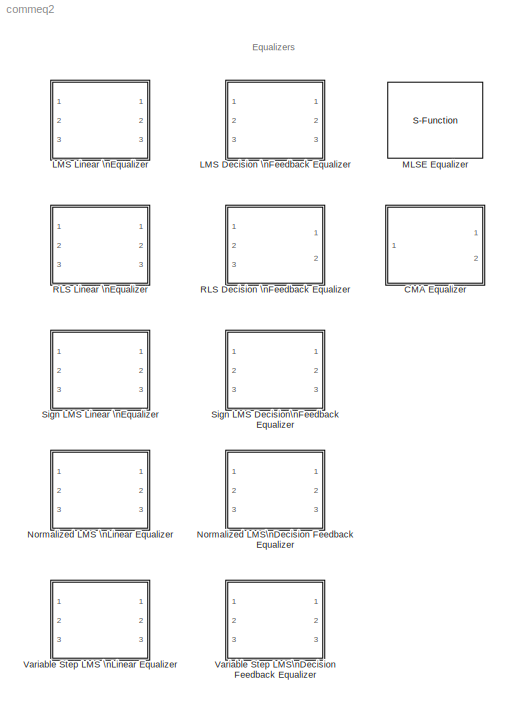
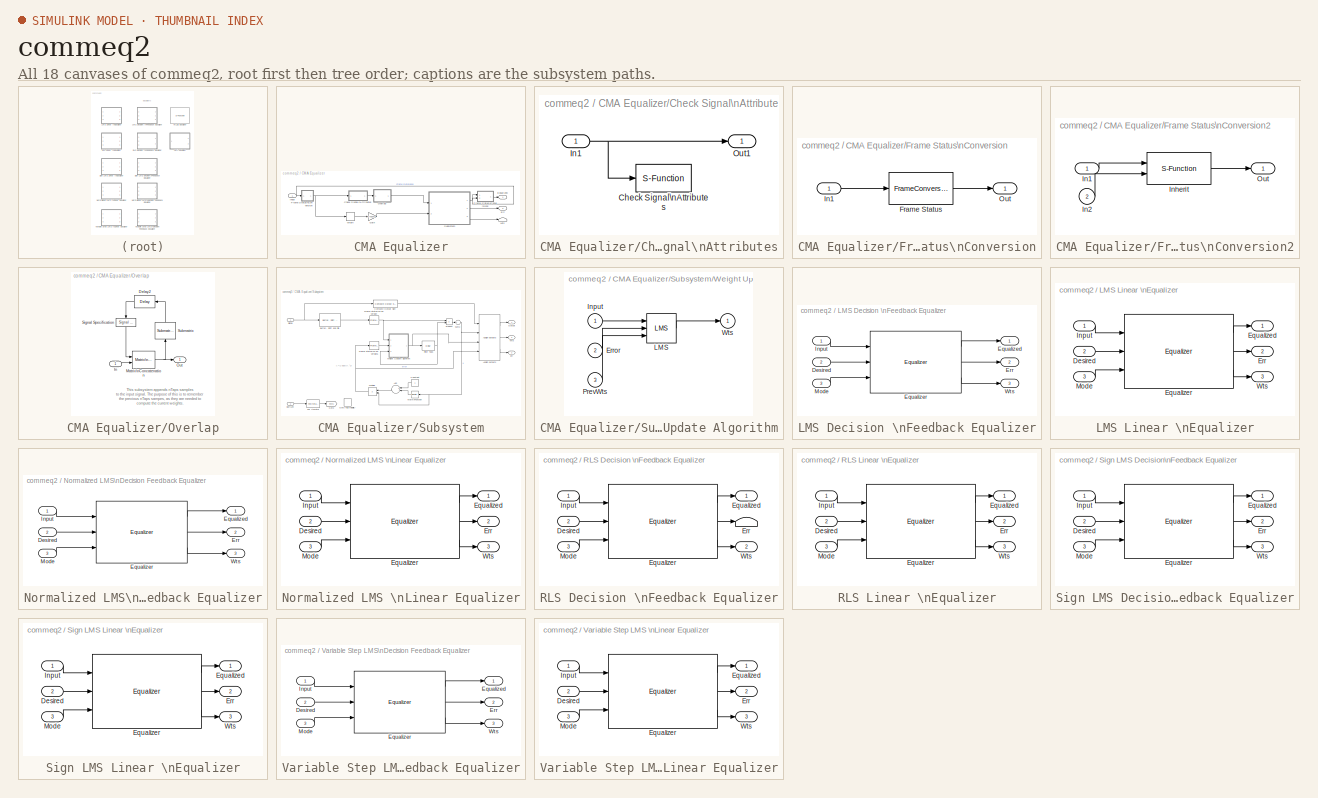
[diagram: thumbnail index - all 18 canvases of the model, root first then tree order]
MODEL commeq2
KIND library
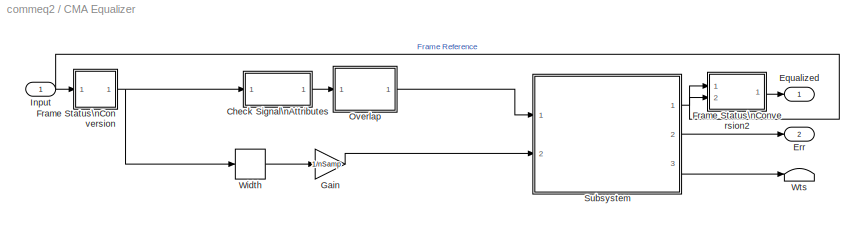
BLOCK [SubSystem] CMA Equalizer
  MaskCallbackString = |||||||
  MaskDescription = Equalize a linearly modulated signal through a dispersive channel using the CMA algorithm.\n\nThe block computes filter weights with the CMA algorithm and filters the input signal. When the number of samples per symbol is 1, the filter weights are updated once for each symbol, for a symbol spaced (i.e. T-spaced) equalizer. When the number of samples per symbol is greater than one, the weights are ...<+267ch>
  MaskDisplay = \n\n
  MaskEnableString = on,on,on,on,on,on,on,on
  MaskHelp = helpview(commbhelp)
  MaskIconFrame = on
  MaskIconOpaque = on
  MaskIconRotate = none
  MaskIconUnits = autoscale
  MaskInitialization = try\ncommblklineqmasklms\ncatch\n	error(lasterr)\nend\ncommblkequpdateports\n
  MaskPromptString = Number of taps:|Number of samples per symbol:|Signal constellation:|Step size:|Leakage factor:|Initial weights:|Output error|Output weights
  MaskSelfModifiable = on
  MaskStyleString = edit,edit,edit,edit,edit,edit,checkbox,checkbox
  MaskTabNameString = ,,,,,,,
  MaskToolTipString = on,on,on,on,on,on,on,on
  MaskTunableValueString = on,on,on,on,on,on,off,off
  MaskType = CMA Equalizer
  MaskValueString = 4|1|qammod([0:15],16)|0.01|1|[1 0 0 0]|on|off
  MaskVarAliasString = ,,,,,,,
  MaskVariables = nTaps=@1;nSamp=@2;sigConst=@3;stepSize=@4;leakage=@5;initWeights=@6;outErr=@7;outWeights=@8;
  MaskVisibilityString = on,on,on,on,on,on,on,on
  MinAlgLoopOccurrences = off
  Ports = [1, 2]
  PropExecContextAcrossSSBoundary = on
  RTWSystemCode = Auto
  TreatAsAtomicUnit = off
BLOCK [SubSystem] CMA Equalizer/Check Signal\nAttributes
  MaskCallbackString = |||dspblkchksigattrbs||dspblkchksigattrbs|dspblkchksigattrbs|||dspblkchksigattrbs|
  MaskDescription = Generate an error when the input signal does or does not match selected attributes exactly.
  MaskDisplay = disp('Check Signal\\n Attributes');
  MaskEnableString = on,on,on,on,on,on,on,on,on,on,on
  MaskHelp = web(dspbhelp);
  MaskIconFrame = on
  MaskIconOpaque = on
  MaskIconRotate = none
  MaskIconUnits = autoscale
  MaskPromptString = Error when input:|Complexity:|Frame status:|Dimensionality:|Dimensions:|Data type:|General data type:|Specific floating-point:|Specific fixed-point:|Specific integer:|Sample mode:
  MaskSelfModifiable = on
  MaskStyleString = popup(Does not match attributes exactly|Matches attributes exactly),popup(Ignore|Real|Complex),popup(Ignore|Frame-based|Sample-based),popup(Ignore|Is...|Is not...),popup(1-D|2-D|Scalar (1-D or 2-D)|Vector (1-D or 2-D)|Vector (1-D or 2-D) or scalar|Row vector (2-D)|Row vector (2-D) or scalar|Column vector (2-D)|Column vector (2-D) or scalar|Full matrix (2-D)|Square matrix (2-D)),popup(Ignore|Is...|...<+305ch>
  MaskTabNameString = ,,,,,,,,,,
  MaskToolTipString = on,on,on,on,on,on,on,on,on,on,on
  MaskTunableValueString = off,off,off,off,off,off,off,off,off,off,off
  MaskType = Check Signal Attributes
  MaskValueString = Does not match attributes exactly|Complex|Ignore|Is not...|Full matrix (2-D)|Ignore|Boolean|Any floating-point|Any fixed-point|Any integer|Ignore
  MaskVarAliasString = ,,,,,,,,,,
  MaskVariables = SigAttribCheckMethod=@1;Complexity=@2;Frame=@3;DimsCheckMethod=@4;Dimensions=@5;DatatypeCheckMethod=@6;DatatypeGeneral=@7;DtypeFloatSpecific=@8;DtypeFixedSpecific=@9;DtypeIntSpecific=@10;SampleMode=@11;
  MaskVisibilityString = on,on,on,on,off,on,off,off,off,off,on
  MinAlgLoopOccurrences = off
  Ports = [1, 1]
  PropExecContextAcrossSSBoundary = on
  RTWSystemCode = Auto
  TreatAsAtomicUnit = off
BLOCK [S-Function] CMA Equalizer/Check Signal\nAttributes/Check Signal\nAttributes
  FunctionName = sdspsigattrib
  Parameters = SigAttribCheckMethod,Complexity,Frame,DimsCheckMethod,Dimensions,DatatypeCheckMethod,DatatypeGeneral,DtypeFloatSpecific,DtypeFixedSpecific,DtypeIntSpecific,SampleMode
  Ports = [1]
BLOCK [Inport] CMA Equalizer/Check Signal\nAttributes/In1
  IconDisplay = Port number
  LatchInput = off
BLOCK [Outport] CMA Equalizer/Check Signal\nAttributes/Out1
  BusOutputAsStruct = off
  IconDisplay = Port number
BLOCK [Outport] CMA Equalizer/Equalized
  BusOutputAsStruct = off
  IconDisplay = Port number
BLOCK [Outport] CMA Equalizer/Err
  BusOutputAsStruct = off
  IconDisplay = Port number
  Port = 2
BLOCK [SubSystem] CMA Equalizer/Frame Status\nConversion
  MaskCallbackString = dspblkfrmconv|
  MaskDescription = Specify the frame status of the output signal.
  MaskDisplay = port_label(p.in1,   p.i1,  p.i1s);\nport_label(p.in2,   p.i2,  p.i2s);\nport_label(p.out, p.o1, p.o1s);\ndisp(str)
  MaskEnableString = on,on
  MaskHelp = web(dspbhelp);
  MaskIconFrame = on
  MaskIconOpaque = on
  MaskIconRotate = none
  MaskIconUnits = autoscale
  MaskInitialization = [p, str] = dspblkfrmconv('init');
  MaskPromptString = Inherit output frame status from Ref input port|Output signal:
  MaskSelfModifiable = on
  MaskStyleString = checkbox,popup(Frame-based|Sample-based)
  MaskTabNameString = ,
  MaskToolTipString = on,on
  MaskTunableValueString = off,off
  MaskType = Frame Status Conversion
  MaskValueString = off|Frame-based
  MaskVarAliasString = ,
  MaskVariables = growRefPort=@1;outframe=@2;
  MaskVisibilityString = on,on
  MinAlgLoopOccurrences = off
  Ports = [1, 1]
  PropExecContextAcrossSSBoundary = on
  RTWSystemCode = Auto
  ShowPortLabels = off
  TreatAsAtomicUnit = off
BLOCK [FrameConversion] CMA Equalizer/Frame Status\nConversion/Frame Status
  OutFrame = Frame based
BLOCK [Inport] CMA Equalizer/Frame Status\nConversion/In1
  IconDisplay = Port number
  LatchInput = off
BLOCK [Outport] CMA Equalizer/Frame Status\nConversion/Out
  BusOutputAsStruct = off
  IconDisplay = Port number
BLOCK [SubSystem] CMA Equalizer/Frame Status\nConversion2
  MaskCallbackString = dspblkfrmconv|
  MaskDescription = Specify the frame status of the output signal.
  MaskDisplay = port_label(p.in1,   p.i1,  p.i1s);\nport_label(p.in2,   p.i2,  p.i2s);\nport_label(p.out, p.o1, p.o1s);\ndisp(str)
  MaskEnableString = on,on
  MaskHelp = web(dspbhelp);
  MaskIconFrame = on
  MaskIconOpaque = on
  MaskIconRotate = none
  MaskIconUnits = autoscale
  MaskInitialization = [p, str] = dspblkfrmconv('init');
  MaskPromptString = Inherit output frame status from Ref input port|Output signal:
  MaskSelfModifiable = on
  MaskStyleString = checkbox,popup(Frame-based|Sample-based)
  MaskTabNameString = ,
  MaskToolTipString = on,on
  MaskTunableValueString = off,off
  MaskType = Frame Status Conversion
  MaskValueString = on|Frame-based
  MaskVarAliasString = ,
  MaskVariables = growRefPort=@1;outframe=@2;
  MaskVisibilityString = on,on
  MinAlgLoopOccurrences = off
  Ports = [2, 1]
  PropExecContextAcrossSSBoundary = on
  RTWSystemCode = Auto
  ShowPortLabels = off
  TreatAsAtomicUnit = off
BLOCK [Inport] CMA Equalizer/Frame Status\nConversion2/In1
  IconDisplay = Port number
  LatchInput = off
BLOCK [Inport] CMA Equalizer/Frame Status\nConversion2/In2
  IconDisplay = Port number
  LatchInput = off
  Port = 2
BLOCK [S-Function] CMA Equalizer/Frame Status\nConversion2/Inherit
  FunctionName = sdspfrmconv
  Parameters = growRefPort,outframe
  Ports = [2, 1]
BLOCK [Outport] CMA Equalizer/Frame Status\nConversion2/Out
  BusOutputAsStruct = off
  IconDisplay = Port number
BLOCK [Gain] CMA Equalizer/Gain
  Gain = 1/nSamp
BLOCK [Inport] CMA Equalizer/Input
  IconDisplay = Port number
  LatchInput = off
BLOCK [SubSystem] CMA Equalizer/Overlap
  MinAlgLoopOccurrences = off
  Ports = [1, 1]
  PropExecContextAcrossSSBoundary = on
  RTWSystemCode = Auto
  TreatAsAtomicUnit = off
BLOCK [Reference] CMA Equalizer/Overlap/Delay2  REF=dspsigops/Delay
  Ports = [1, 1]
  SourceBlock = dspsigops/Delay
  SourceType = Delay
  delay = nFwdTaps
  dif_ic_for_ch = off
  dif_ic_for_dly = off
  dly_unit = Samples
  ic = 0
  ic_detail = off
  reset_popup = None
BLOCK [Inport] CMA Equalizer/Overlap/In
  IconDisplay = Port number
  LatchInput = off
BLOCK [Reference] CMA Equalizer/Overlap/Matrix\nConcatenation  REF=simulink/Math\nOperations/Matrix\nConcatenation
  Ports = [2, 1]
  SourceBlock = simulink/Math\nOperations/Matrix\nConcatenation
  SourceType = Matrix Concatenation
  catMethod = Vertical
  numInports = 2
BLOCK [Outport] CMA Equalizer/Overlap/Out
  BusOutputAsStruct = off
  IconDisplay = Port number
BLOCK [Reference] CMA Equalizer/Overlap/Signal Specification  REF=simulink/Signal\nAttributes/Signal Specification
  D = [nFwdTaps 1]
  DataType = auto
  OutDataType = sfix(16)
  OutScaling = 2^0
  Ports = [1, 1]
  SamplingMode = auto
  SignalType = auto
  SourceBlock = simulink/Signal\nAttributes/Signal Specification
  SourceType = Signal Specification
  Ts = -1
BLOCK [Reference] CMA Equalizer/Overlap/Submatrix  REF=dspmtrx3/Submatrix
  ColEndIndex = 1
  ColEndMode = Last
  ColSpan = Range of columns
  ColStartIndex = 1
  ColStartMode = First
  Ports = [1, 1]
  RowEndIndex = 1
  RowEndMode = Last
  RowSpan = Range of rows
  RowStartIndex = nFwdTaps-1
  RowStartMode = Offset from last
  SourceBlock = dspmtrx3/Submatrix
  SourceType = Submatrix
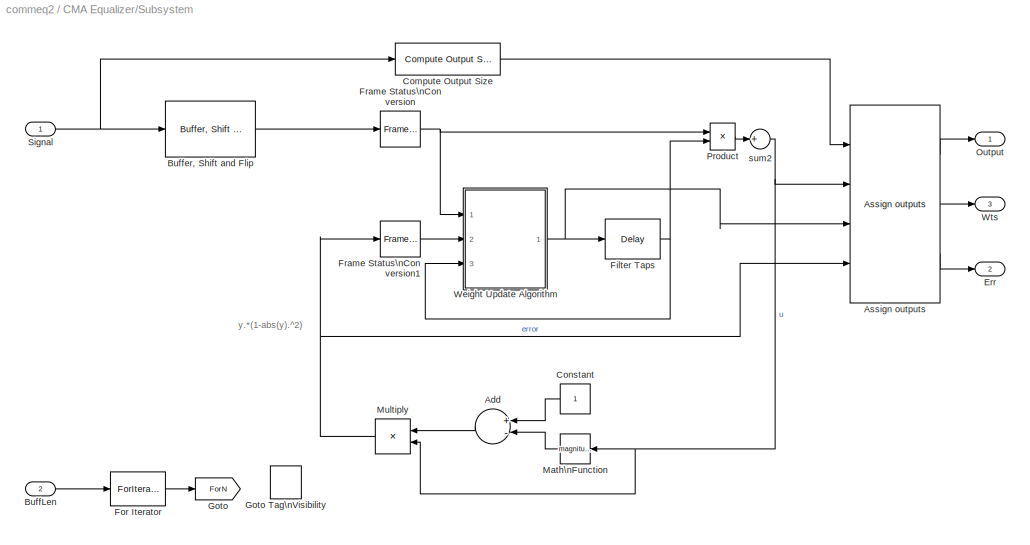
BLOCK [SubSystem] CMA Equalizer/Subsystem
  MinAlgLoopOccurrences = off
  Ports = [2, 3]
  PropExecContextAcrossSSBoundary = on
  RTWSystemCode = Auto
  TreatAsAtomicUnit = off
BLOCK [Sum] CMA Equalizer/Subsystem/Add
  InputSameDT = off
  Inputs = +-
  OutDataTypeMode = Inherit via internal rule
  OutScaling = 2^-10
  Ports = [2, 1]
  SaturateOnIntegerOverflow = off
BLOCK [Reference] CMA Equalizer/Subsystem/Assign outputs  REF=commeqprivlib/Assign outputs
  Ports = [4, 3]
  ShowPortLabels = on
  SourceBlock = commeqprivlib/Assign outputs
  SourceType = SubSystem
BLOCK [Inport] CMA Equalizer/Subsystem/BuffLen
  IconDisplay = Port number
  LatchInput = off
  Port = 2
BLOCK [Reference] CMA Equalizer/Subsystem/Buffer, Shift and Flip  REF=commeqprivlib/Buffer, Shift and Flip
  Ports = [1, 1]
  ShowPortLabels = on
  SourceBlock = commeqprivlib/Buffer, Shift and Flip
  SourceType = SubSystem
BLOCK [Reference] CMA Equalizer/Subsystem/Compute Output Size  REF=commeqprivlib/Compute Output Size
  Ports = [1, 1]
  ShowPortLabels = on
  SourceBlock = commeqprivlib/Compute Output Size
  SourceType = SubSystem
BLOCK [Constant] CMA Equalizer/Subsystem/Constant
BLOCK [Outport] CMA Equalizer/Subsystem/Err
  BusOutputAsStruct = off
  IconDisplay = Port number
  Port = 2
BLOCK [Reference] CMA Equalizer/Subsystem/Filter Taps  REF=dspsigops/Delay
  Ports = [1, 1]
  SourceBlock = dspsigops/Delay
  SourceType = Delay
  delay = 1
  dif_ic_for_ch = on
  dif_ic_for_dly = off
  dly_unit = Samples
  ic = initWeights
  ic_detail = on
  reset_popup = None
BLOCK [ForIterator] CMA Equalizer/Subsystem/For Iterator
  IndexMode = Zero-based
  IterationLimit = 4
  IterationSource = external
  IterationVariableDataType = double
  Ports = [1, 1]
BLOCK [Reference] CMA Equalizer/Subsystem/Frame Status\nConversion  REF=dspsigattribs/Frame Status\nConversion
  Ports = [1, 1]
  ShowPortLabels = off
  SourceBlock = dspsigattribs/Frame Status\nConversion
  SourceType = Frame Status Conversion
  growRefPort = off
  outframe = Sample-based
BLOCK [Reference] CMA Equalizer/Subsystem/Frame Status\nConversion1  REF=dspsigattribs/Frame Status\nConversion
  Ports = [1, 1]
  ShowPortLabels = off
  SourceBlock = dspsigattribs/Frame Status\nConversion
  SourceType = Frame Status Conversion
  growRefPort = off
  outframe = Sample-based
BLOCK [Goto] CMA Equalizer/Subsystem/Goto
  DialogController = Simulink.DDGSource
  GotoTag = ForN
  TagVisibility = scoped
BLOCK [GotoTagVisibility] CMA Equalizer/Subsystem/Goto Tag\nVisibility
  GotoTag = ForN
BLOCK [Math] CMA Equalizer/Subsystem/Math\nFunction
  Operator = magnitude^2
  Ports = [1, 1]
BLOCK [Product] CMA Equalizer/Subsystem/Multiply
  InputSameDT = off
  Inputs = **
  OutDataTypeMode = Inherit via internal rule
  OutScaling = 2^-10
  Ports = [2, 1]
  RndMeth = Floor
  SaturateOnIntegerOverflow = off
BLOCK [Outport] CMA Equalizer/Subsystem/Output
  BusOutputAsStruct = off
  IconDisplay = Port number
BLOCK [Product] CMA Equalizer/Subsystem/Product
  InputSameDT = off
  OutDataTypeMode = Inherit via internal rule
  Ports = [2, 1]
  RndMeth = Floor
BLOCK [Inport] CMA Equalizer/Subsystem/Signal
  IconDisplay = Port number
  LatchInput = off
BLOCK [SubSystem] CMA Equalizer/Subsystem/Weight Update Algorithm
  AttributesFormatString = %<BlockChoice>
  BlockChoice = LMS
  MemberBlocks = Complex Sign LMS,LMS,Normalized LMS,RLS,Sign LMS,Sign Regressor LMS,Sign Sign LMS,Variable Step LMS
  MinAlgLoopOccurrences = off
  Ports = [3, 1]
  PropExecContextAcrossSSBoundary = on
  RTWSystemCode = Auto
  TemplateBlock = commeqprivlib/Weight Update Algorithm
  TreatAsAtomicUnit = off
BLOCK [Inport] CMA Equalizer/Subsystem/Weight Update Algorithm/Error
  IconDisplay = Port number
  LatchInput = off
  Port = 2
BLOCK [Inport] CMA Equalizer/Subsystem/Weight Update Algorithm/Input
  IconDisplay = Port number
  LatchInput = off
BLOCK [Reference] CMA Equalizer/Subsystem/Weight Update Algorithm/LMS  REF=commeqprivlib/LMS
  Ports = [3, 1]
  ShowPortLabels = on
  SourceBlock = commeqprivlib/LMS
  SourceType = SubSystem
BLOCK [Inport] CMA Equalizer/Subsystem/Weight Update Algorithm/PrevWts
  IconDisplay = Port number
  LatchInput = off
  Port = 3
BLOCK [Outport] CMA Equalizer/Subsystem/Weight Update Algorithm/Wts
  BusOutputAsStruct = off
  IconDisplay = Port number
BLOCK [Outport] CMA Equalizer/Subsystem/Wts
  BusOutputAsStruct = off
  IconDisplay = Port number
  Port = 3
BLOCK [Sum] CMA Equalizer/Subsystem/sum2
  Inputs = +
  Ports = [1, 1]
BLOCK [Width] CMA Equalizer/Width
  OutputDataTypeScalingMode = Inherit via back propagation
BLOCK [Terminator] CMA Equalizer/Wts
BLOCK [SubSystem] LMS Decision \nFeedback Equalizer
  MaskCallbackString = ||||||||||
  MaskDescription = Equalize a linearly modulated signal through a dispersive channel using a decision feedback equalizer and the LMS algorithm.\n\nThe block computes filter weights with the LMS algorithm and filters the input signal. The filter weights are updated once for each symbol.\n\nThe Desired input is used for training the equalizer. It expects complex constellation points.\n\nThe Leakage factor must be in t...<+495ch>
  MaskEnableString = on,on,on,on,on,on,on,on,on,on,on
  MaskHelp = helpview(commbhelp)
  MaskIconFrame = on
  MaskIconOpaque = on
  MaskIconRotate = none
  MaskIconUnits = autoscale
  MaskInitialization = try\ncommblkdfeeqlms\ncatch\n	error(lasterr)\nend\ncommblkequpdateports
  MaskPromptString = Number of forward taps:|Number of feedback taps:|Number of samples per symbol:|Signal constellation:|Reference tap:|Step size:|Leakage factor:|Initial weights:|Mode input port|Output error|Output weights
  MaskSelfModifiable = on
  MaskStyleString = edit,edit,edit,edit,edit,edit,edit,edit,checkbox,checkbox,checkbox
  MaskTabNameString = ,,,,,,,,,,
  MaskToolTipString = on,on,on,on,on,on,on,on,on,on,on
  MaskTunableValueString = on,on,on,on,on,on,on,on,off,off,off
  MaskType = LMS Decision Feedback Equalizer
  MaskValueString = 6|6|1|qammod([0:3],4)|3|0.01|1|0|on|on|on
  MaskVarAliasString = ,,,,,,,,,,
  MaskVariables = nFwdTaps=@1;nFdbkTaps=@2;nSamp=@3;sigConst=@4;delay=@5;stepSize=@6;leakage=@7;initWeights=@8;mode=@9;outErr=@10;outWeights=@11;
  MaskVisibilityString = on,on,on,on,on,on,on,on,on,on,on
  MinAlgLoopOccurrences = off
  Ports = [3, 3]
  PropExecContextAcrossSSBoundary = on
  RTWSystemCode = Auto
  TreatAsAtomicUnit = off
BLOCK [Inport] LMS Decision \nFeedback Equalizer/Desired
  IconDisplay = Port number
  LatchInput = off
  Port = 2
BLOCK [Outport] LMS Decision \nFeedback Equalizer/Equalized
  BusOutputAsStruct = off
  IconDisplay = Port number
BLOCK [Reference] LMS Decision \nFeedback Equalizer/Equalizer   REF=commeqprivlib/Equalizer 
  Ports = [3, 3]
  SourceBlock = commeqprivlib/Equalizer
  SourceType = Unknown
  alg = LMS
  eqType = DFE
BLOCK [Outport] LMS Decision \nFeedback Equalizer/Err
  BusOutputAsStruct = off
  IconDisplay = Port number
  Port = 2
BLOCK [Inport] LMS Decision \nFeedback Equalizer/Input
  IconDisplay = Port number
  LatchInput = off
BLOCK [Inport] LMS Decision \nFeedback Equalizer/Mode
  IconDisplay = Port number
  LatchInput = off
  Port = 3
BLOCK [Outport] LMS Decision \nFeedback Equalizer/Wts
  BusOutputAsStruct = off
  IconDisplay = Port number
  Port = 3
BLOCK [SubSystem] LMS Linear \nEqualizer
  MaskCallbackString = |||||||||
  MaskDescription = Equalize a linearly modulated signal through a dispersive channel using the LMS algorithm.\n\nThe block computes filter weights with the LMS algorithm and filters the input signal. When the number of samples per symbol is 1, the filter weights are updated once for each symbol, for a symbol spaced (i.e. T-spaced) equalizer. When the number of samples per symbol is greater than one, the weights are ...<+686ch>
  MaskDisplay = \n\n
  MaskEnableString = on,on,on,on,on,on,on,on,on,on
  MaskHelp = helpview(commbhelp)
  MaskIconFrame = on
  MaskIconOpaque = on
  MaskIconRotate = none
  MaskIconUnits = autoscale
  MaskInitialization = try\ncommblklineqmasklms\ncatch\n	error(lasterr)\nend\ncommblkequpdateports\n
  MaskPromptString = Number of taps:|Number of samples per symbol:|Signal constellation:|Reference tap:|Step size:|Leakage factor:|Initial weights:|Mode input port|Output error|Output weights
  MaskSelfModifiable = on
  MaskStyleString = edit,edit,edit,edit,edit,edit,edit,checkbox,checkbox,checkbox
  MaskTabNameString = ,,,,,,,,,
  MaskToolTipString = on,on,on,on,on,on,on,on,on,on
  MaskTunableValueString = on,on,on,on,on,on,on,off,off,off
  MaskType = LMS Linear Equalizer
  MaskValueString = 4|1|qammod([0:15],16)|2|0.01|1|0|on|on|on
  MaskVarAliasString = ,,,,,,,,,
  MaskVariables = nTaps=@1;nSamp=@2;sigConst=@3;delay=@4;stepSize=@5;leakage=@6;initWeights=@7;mode=@8;outErr=@9;outWeights=@10;
  MaskVisibilityString = on,on,on,on,on,on,on,on,on,on
  MinAlgLoopOccurrences = off
  Ports = [3, 3]
  PropExecContextAcrossSSBoundary = on
  RTWSystemCode = Auto
  TreatAsAtomicUnit = off
BLOCK [Inport] LMS Linear \nEqualizer/Desired
  IconDisplay = Port number
  LatchInput = off
  Port = 2
BLOCK [Outport] LMS Linear \nEqualizer/Equalized
  BusOutputAsStruct = off
  IconDisplay = Port number
BLOCK [Reference] LMS Linear \nEqualizer/Equalizer   REF=commeqprivlib/Equalizer 
  Ports = [3, 3]
  SourceBlock = commeqprivlib/Equalizer
  SourceType = Unknown
  alg = LMS
  eqType = Linear
BLOCK [Outport] LMS Linear \nEqualizer/Err
  BusOutputAsStruct = off
  IconDisplay = Port number
  Port = 2
BLOCK [Inport] LMS Linear \nEqualizer/Input
  IconDisplay = Port number
  LatchInput = off
BLOCK [Inport] LMS Linear \nEqualizer/Mode
  IconDisplay = Port number
  LatchInput = off
  Port = 3
BLOCK [Outport] LMS Linear \nEqualizer/Wts
  BusOutputAsStruct = off
  IconDisplay = Port number
  Port = 3
BLOCK [S-Function] MLSE Equalizer
  FunctionName = scommlseeq
  MaskCallbackString = commblkmlseeq(gcb,'cbSpecchan');||||commblkmlseeq(gcb,'cbOpmode');|commblkmlseeq(gcb,'cbEnpreamble');||commblkmlseeq(gcb,'cbEnpostamble');|||
  MaskDescription = Equalize a linearly modulated signal through a dispersive channel using the Viterbi algorithm. \n\nThe block estimates the transmitted sequence from the received signal and the channel estimates, and then outputs complex constellation points at the symbol rate.
  MaskDisplay = plot(-10,-10,110,110,s.draw.x,s.draw.y);\ndisp('\\n\\nMLSE Equalizer');\nport_label('input',s.ports.i1,s.ports.i1s);\nport_label('input',s.ports.i2,s.ports.i2s);\nport_label('input',s.ports.i3,s.ports.i3s);\nport_label('output',s.ports.o1,s.ports.o1s);
  MaskEnableString = on,on,on,on,on,on,off,on,off,on,on
  MaskHelp = helpview(commbhelp)
  MaskIconFrame = on
  MaskIconOpaque = on
  MaskIconRotate = none
  MaskIconUnits = autoscale
  MaskInitialization = [e, s, cplxconstpts] = commblkmlseeq(gcb,'init');\nif ~isempty(e.msg)\n	error(e.msg); \nend\n\n\n\n\n\n
  MaskPromptString = Specify channel via:|Channel coefficients:|Signal constellation:|Traceback depth:|Operation mode:|Input contains preamble|Expected preamble:|Input contains postamble|Expected postamble:|Samples per input symbol:|Enable the reset input port
  MaskSelfModifiable = on
  MaskStyleString = popup(Input port|Dialog),edit,edit,edit,popup(Continuous with reset option|Reset every frame),checkbox,edit,checkbox,edit,edit,checkbox
  MaskTabNameString = ,,,,,,,,,,
  MaskToolTipString = on,on,on,on,on,on,on,on,on,on,on
  MaskTunableValueString = off,on,on,on,off,on,on,on,on,on,off
  MaskType = MLSE Equalizer
  MaskValueString = Dialog|[1 0.7 0.5 0.3]'|[1+j -1+j -1-j 1-j]|21|Continuous with reset option|off|[0 3 2 1]|off|[0 2 3 1]|1|off
  MaskVarAliasString = ,,,,,,,,,,
  MaskVariables = specchan=@1;chancoeff=@2;constpts=@3;tbdepth=@4;opmode=@5;enpreamble=@6;preamble=@7;enpostamble=@8;postamble=@9;numsamp=@10;reset=@11;
  MaskVisibilityString = on,on,on,on,on,off,off,off,off,on,on
  Parameters = specchan, real(chancoeff), imag(chancoeff), real(cplxconstpts), imag(cplxconstpts), tbdepth, opmode, enpreamble, preamble, enpostamble, postamble, numsamp, reset
  Ports = [1, 1]
  SFunctionModules = viterbi_acs_tbdec
BLOCK [SubSystem] Normalized LMS \nLinear Equalizer
  MaskCallbackString = ||||||||||
  MaskDescription = Equalize a linearly modulated signal through a dispersive channel using the normalized LMS algorithm.\n\nThe block computes filter weights with the normalized LMS algorithm and filters the input signal. When the number of samples per symbol is 1, the filter weights are updated once for each symbol, for a symbol spaced (i.e. T-spaced) equalizer. When the number of samples per symbol is greater than...<+701ch>
  MaskDisplay = \n\n
  MaskEnableString = on,on,on,on,on,on,on,on,on,on,on
  MaskHelp = helpview(commbhelp)
  MaskIconFrame = on
  MaskIconOpaque = on
  MaskIconRotate = none
  MaskIconUnits = autoscale
  MaskInitialization = try\ncommblklineqmasklms\ncatch\n	error(lasterr)\nend\n\nif(~isnumeric(bias) || ~isscalar(bias) || bias < 0 )\n	error('Bias must be a numeric scalar greater than 0.');\nend\ncommblkequpdateports\n
  MaskPromptString = Number of taps:|Number of samples per symbol:|Signal constellation:|Reference tap:|Step size:|Leakage factor:|Bias:|Initial weights:|Mode input port|Output error|Output weights
  MaskSelfModifiable = on
  MaskStyleString = edit,edit,edit,edit,edit,edit,edit,edit,checkbox,checkbox,checkbox
  MaskTabNameString = ,,,,,,,,,,
  MaskToolTipString = on,on,on,on,on,on,on,on,on,on,on
  MaskTunableValueString = on,on,on,on,on,on,on,on,off,off,off
  MaskType = Normalized LMS Linear Equalizer
  MaskValueString = 4|1|qammod([0:15],16)|2|0.01|1|1|0|on|on|on
  MaskVarAliasString = ,,,,,,,,,,
  MaskVariables = nTaps=@1;nSamp=@2;sigConst=@3;delay=@4;stepSize=@5;leakage=@6;bias=@7;initWeights=@8;mode=@9;outErr=@10;outWeights=@11;
  MaskVisibilityString = on,on,on,on,on,on,on,on,on,on,on
  MinAlgLoopOccurrences = off
  Ports = [3, 3]
  PropExecContextAcrossSSBoundary = on
  RTWSystemCode = Auto
  TreatAsAtomicUnit = off
BLOCK [Inport] Normalized LMS \nLinear Equalizer/Desired
  IconDisplay = Port number
  LatchInput = off
  Port = 2
BLOCK [Outport] Normalized LMS \nLinear Equalizer/Equalized
  BusOutputAsStruct = off
  IconDisplay = Port number
BLOCK [Reference] Normalized LMS \nLinear Equalizer/Equalizer   REF=commeqprivlib/Equalizer 
  Ports = [3, 3]
  ShowPortLabels = on
  SourceBlock = commeqprivlib/Equalizer
  SourceType = Unknown
  alg = Normalized LMS
  eqType = Linear
BLOCK [Outport] Normalized LMS \nLinear Equalizer/Err
  BusOutputAsStruct = off
  IconDisplay = Port number
  Port = 2
BLOCK [Inport] Normalized LMS \nLinear Equalizer/Input
  IconDisplay = Port number
  LatchInput = off
BLOCK [Inport] Normalized LMS \nLinear Equalizer/Mode
  IconDisplay = Port number
  LatchInput = off
  Port = 3
BLOCK [Outport] Normalized LMS \nLinear Equalizer/Wts
  BusOutputAsStruct = off
  IconDisplay = Port number
  Port = 3
BLOCK [SubSystem] Normalized LMS\nDecision Feedback Equalizer
  MaskCallbackString = |||||||||||
  MaskDescription = Equalize a linearly modulated signal through a dispersive channel using a decision feedback equalizer and the normalized LMS algorithm.\n\nThe block computes filter weights with the normalized LMS algorithm and filters the input signal. When the number of samples per symbol is 1, the filter weights are updated once for each symbol, for a symbol spaced (i.e. T-spaced) equalizer. When the number of ...<+777ch>
  MaskEnableString = on,on,on,on,on,on,on,on,on,on,on,on
  MaskHelp = helpview(commbhelp)
  MaskIconFrame = on
  MaskIconOpaque = on
  MaskIconRotate = none
  MaskIconUnits = autoscale
  MaskInitialization = try\ncommblkdfeeqlms\ncatch\n	error(lasterr)\nend\nif(~isnumeric(bias) || ~isscalar(bias) || bias < 0 )\n	error('Bias must be a numeric scalar greater than 0.');\nend\ncommblkequpdateports
  MaskPromptString = Number of forward taps:|Number of feedback taps:|Number of samples per symbol:|Signal constellation:|Reference tap:|Step size:|Leakage factor:|Bias:|Initial weights:|Mode input port|Output error|Output weights
  MaskSelfModifiable = on
  MaskStyleString = edit,edit,edit,edit,edit,edit,edit,edit,edit,checkbox,checkbox,checkbox
  MaskTabNameString = ,,,,,,,,,,,
  MaskToolTipString = on,on,on,on,on,on,on,on,on,on,on,on
  MaskTunableValueString = on,on,on,on,on,on,on,on,on,off,off,off
  MaskType = Normalized LMS Decision Feedback Equalizer
  MaskValueString = 6|6|1|qammod([0:3],4)|3|0.01|1|0|0|on|on|on
  MaskVarAliasString = ,,,,,,,,,,,
  MaskVariables = nFwdTaps=@1;nFdbkTaps=@2;nSamp=@3;sigConst=@4;delay=@5;stepSize=@6;leakage=@7;bias=@8;initWeights=@9;mode=@10;outErr=@11;outWeights=@12;
  MaskVisibilityString = on,on,on,on,on,on,on,on,on,on,on,on
  MinAlgLoopOccurrences = off
  Ports = [3, 3]
  PropExecContextAcrossSSBoundary = on
  RTWSystemCode = Auto
  TreatAsAtomicUnit = off
BLOCK [Inport] Normalized LMS\nDecision Feedback Equalizer/Desired
  IconDisplay = Port number
  LatchInput = off
  Port = 2
BLOCK [Outport] Normalized LMS\nDecision Feedback Equalizer/Equalized
  BusOutputAsStruct = off
  IconDisplay = Port number
BLOCK [Reference] Normalized LMS\nDecision Feedback Equalizer/Equalizer   REF=commeqprivlib/Equalizer 
  Ports = [3, 3]
  ShowPortLabels = on
  SourceBlock = commeqprivlib/Equalizer
  SourceType = Unknown
  alg = Normalized LMS
  eqType = DFE
BLOCK [Outport] Normalized LMS\nDecision Feedback Equalizer/Err
  BusOutputAsStruct = off
  IconDisplay = Port number
  Port = 2
BLOCK [Inport] Normalized LMS\nDecision Feedback Equalizer/Input
  IconDisplay = Port number
  LatchInput = off
BLOCK [Inport] Normalized LMS\nDecision Feedback Equalizer/Mode
  IconDisplay = Port number
  LatchInput = off
  Port = 3
BLOCK [Outport] Normalized LMS\nDecision Feedback Equalizer/Wts
  BusOutputAsStruct = off
  IconDisplay = Port number
  Port = 3
BLOCK [SubSystem] RLS Decision \nFeedback Equalizer
  MaskCallbackString = ||||||||||
  MaskDescription = Equalize a linearly modulated signal through a dispersive channel using a decision feedback equalizer and the RLS algorithm.\n\nThe block computes filter weights with the RLS algorithm and filters the input signal. When the number of samples per symbol is 1, the filter weights are updated once for each symbol, for a symbol spaced equalizer. When the number of samples per symbol is greater than one...<+529ch>
  MaskDisplay = \n\n
  MaskEnableString = on,on,on,on,on,on,on,on,on,on,on
  MaskHelp = helpview(commbhelp)
  MaskIconFrame = on
  MaskIconOpaque = on
  MaskIconRotate = none
  MaskIconUnits = autoscale
  MaskInitialization = try\ncommblkdfeeqrls\ncatch\n	error(lasterr)\nend\ncommblkequpdateports\n
  MaskPromptString = Number of forward taps:|Number of feedback taps:|Number of samples per symbol:|Signal constellation:|Reference tap:|Forgetting factor:|Inverse correlation matrix|Initial weights:|Mode input port|Output error|Output weights
  MaskSelfModifiable = on
  MaskStyleString = edit,edit,edit,edit,edit,edit,edit,edit,checkbox,checkbox,checkbox
  MaskTabNameString = ,,,,,,,,,,
  MaskToolTipString = on,on,on,on,on,on,on,on,on,on,on
  MaskTunableValueString = on,on,on,on,on,on,on,on,off,off,off
  MaskType = RLS Decision Feedback equalizer
  MaskValueString = 2|2|1|qammod([0:15],16)|1|.99|.1*eye(4)|0|on|off|on
  MaskVarAliasString = ,,,,,,,,,,
  MaskVariables = nFwdTaps=@1;nFdbkTaps=@2;nSamp=@3;sigConst=@4;delay=@5;lambda=@6;invCorr=@7;initWeights=@8;mode=@9;outErr=@10;outWeights=@11;
  MaskVisibilityString = on,on,on,on,on,on,on,on,on,on,on
  MinAlgLoopOccurrences = off
  Ports = [3, 2]
  PropExecContextAcrossSSBoundary = on
  RTWSystemCode = Auto
  TreatAsAtomicUnit = off
BLOCK [Inport] RLS Decision \nFeedback Equalizer/Desired
  IconDisplay = Port number
  LatchInput = off
  Port = 2
BLOCK [Outport] RLS Decision \nFeedback Equalizer/Equalized
  BusOutputAsStruct = off
  IconDisplay = Port number
BLOCK [Reference] RLS Decision \nFeedback Equalizer/Equalizer   REF=commeqprivlib/Equalizer 
  Ports = [3, 3]
  SourceBlock = commeqprivlib/Equalizer
  SourceType = Unknown
  alg = RLS
  eqType = DFE
BLOCK [Terminator] RLS Decision \nFeedback Equalizer/Err
BLOCK [Inport] RLS Decision \nFeedback Equalizer/Input
  IconDisplay = Port number
  LatchInput = off
BLOCK [Inport] RLS Decision \nFeedback Equalizer/Mode
  IconDisplay = Port number
  LatchInput = off
  Port = 3
BLOCK [Outport] RLS Decision \nFeedback Equalizer/Wts
  BusOutputAsStruct = off
  IconDisplay = Port number
  Port = 2
BLOCK [SubSystem] RLS Linear \nEqualizer
  MaskCallbackString = |||||||||
  MaskDescription = Equalize a linearly modulated signal through a dispersive channel using the RLS algorithm.\n\nThe block computes filter weights with the RLS algorithm and filters the input signal. When the number of samples per symbol is 1, the filter weights are updated once for each symbol, for a symbol spaced (i.e. T-spaced) equalizer. When the number of samples per symbol is greater than one, the weights are ...<+530ch>
  MaskDisplay = \n\n
  MaskEnableString = on,on,on,on,on,on,on,on,on,on
  MaskHelp = helpview(commbhelp)
  MaskIconFrame = on
  MaskIconOpaque = on
  MaskIconRotate = none
  MaskIconUnits = autoscale
  MaskInitialization = try\ncommblklineqmaskrls\ncatch\n	error(lasterr)\nend\ncommblkequpdateports\n
  MaskPromptString = Number of taps:|Number of samples per symbol:|Signal constellation:|Reference tap:|Forgetting factor:|Inverse correlation matrix|Initial weights:|Mode input port|Output error|Output weights
  MaskSelfModifiable = on
  MaskStyleString = edit,edit,edit,edit,edit,edit,edit,checkbox,checkbox,checkbox
  MaskTabNameString = ,,,,,,,,,
  MaskToolTipString = on,on,on,on,on,on,on,on,on,on
  MaskTunableValueString = on,on,on,on,on,on,on,off,off,off
  MaskType = RLS Linear Equalizer
  MaskValueString = 4|1|qammod([0:15],16)|2|.99|.1*eye(4)|0|on|on|on
  MaskVarAliasString = ,,,,,,,,,
  MaskVariables = nTaps=@1;nSamp=@2;sigConst=@3;delay=@4;lambda=@5;invCorr=@6;initWeights=@7;mode=@8;outErr=@9;outWeights=@10;
  MaskVisibilityString = on,on,on,on,on,on,on,on,on,on
  MinAlgLoopOccurrences = off
  Ports = [3, 3]
  PropExecContextAcrossSSBoundary = on
  RTWSystemCode = Auto
  TreatAsAtomicUnit = off
BLOCK [Inport] RLS Linear \nEqualizer/Desired
  IconDisplay = Port number
  LatchInput = off
  Port = 2
BLOCK [Outport] RLS Linear \nEqualizer/Equalized
  BusOutputAsStruct = off
  IconDisplay = Port number
BLOCK [Reference] RLS Linear \nEqualizer/Equalizer   REF=commeqprivlib/Equalizer 
  Ports = [3, 3]
  SourceBlock = commeqprivlib/Equalizer
  SourceType = Unknown
  alg = RLS
  eqType = Linear
BLOCK [Outport] RLS Linear \nEqualizer/Err
  BusOutputAsStruct = off
  IconDisplay = Port number
  Port = 2
BLOCK [Inport] RLS Linear \nEqualizer/Input
  IconDisplay = Port number
  LatchInput = off
BLOCK [Inport] RLS Linear \nEqualizer/Mode
  IconDisplay = Port number
  LatchInput = off
  Port = 3
BLOCK [Outport] RLS Linear \nEqualizer/Wts
  BusOutputAsStruct = off
  IconDisplay = Port number
  Port = 3
BLOCK [SubSystem] Sign LMS Decision\nFeedback Equalizer
  MaskCallbackString = commblkeqsignlms|||||||||||
  MaskDescription = Equalize a linearly modulated signal through a dispersive channel using a decision feedback equalizer and the signed LMS algorithm.\n\nThe block computes filter weights with the signed LMS algorithm and filters the input signal. When the number of samples per symbol is 1, the filter weights are updated once for each symbol, for a symbol spaced (i.e. T-spaced) equalizer. When the number of samples ...<+727ch>
  MaskDisplay = \n\n
  MaskEnableString = on,on,on,on,on,on,on,on,on,on,on,on
  MaskHelp = helpview(commbhelp)
  MaskIconFrame = on
  MaskIconOpaque = on
  MaskIconRotate = none
  MaskIconUnits = autoscale
  MaskInitialization = try\ncommblkdfeeqlms\ncatch\n	error(lasterr)\nend\ncommblkequpdateports\n
  MaskPromptString = Update algorithm|Number of forward taps:|Number of feedback taps:|Number of samples per symbol:|Signal constellation:|Reference tap:|Step size:|Leakage factor:|Initial weights:|Mode input port|Output error|Output weights
  MaskSelfModifiable = on
  MaskStyleString = popup(Sign LMS|Sign Regressor LMS|Sign Sign LMS),edit,edit,edit,edit,edit,edit,edit,edit,checkbox,checkbox,checkbox
  MaskTabNameString = ,,,,,,,,,,,
  MaskToolTipString = on,on,on,on,on,on,on,on,on,on,on,on
  MaskTunableValueString = on,on,on,on,on,on,on,on,on,off,off,off
  MaskType = Sign LMS Decision Feedback Equalizer
  MaskValueString = Sign LMS|4|4|1|qammod([0:15],16)|2|0.01|1|0|on|on|on
  MaskVarAliasString = ,,,,,,,,,,,
  MaskVariables = alg=@1;nFwdTaps=@2;nFdbkTaps=@3;nSamp=@4;sigConst=@5;delay=@6;stepSize=@7;leakage=@8;initWeights=@9;mode=@10;outErr=@11;outWeights=@12;
  MaskVisibilityString = on,on,on,on,on,on,on,on,on,on,on,on
  MinAlgLoopOccurrences = off
  Ports = [3, 3]
  PropExecContextAcrossSSBoundary = on
  RTWSystemCode = Auto
  TreatAsAtomicUnit = off
BLOCK [Inport] Sign LMS Decision\nFeedback Equalizer/Desired
  IconDisplay = Port number
  LatchInput = off
  Port = 2
BLOCK [Outport] Sign LMS Decision\nFeedback Equalizer/Equalized
  BusOutputAsStruct = off
  IconDisplay = Port number
BLOCK [Reference] Sign LMS Decision\nFeedback Equalizer/Equalizer   REF=commeqprivlib/Equalizer 
  Ports = [3, 3]
  ShowPortLabels = on
  SourceBlock = commeqprivlib/Equalizer
  SourceType = Unknown
  alg = Sign LMS
  eqType = DFE
BLOCK [Outport] Sign LMS Decision\nFeedback Equalizer/Err
  BusOutputAsStruct = off
  IconDisplay = Port number
  Port = 2
BLOCK [Inport] Sign LMS Decision\nFeedback Equalizer/Input
  IconDisplay = Port number
  LatchInput = off
BLOCK [Inport] Sign LMS Decision\nFeedback Equalizer/Mode
  IconDisplay = Port number
  LatchInput = off
  Port = 3
BLOCK [Outport] Sign LMS Decision\nFeedback Equalizer/Wts
  BusOutputAsStruct = off
  IconDisplay = Port number
  Port = 3
BLOCK [SubSystem] Sign LMS Linear \nEqualizer
  MaskCallbackString = commblkeqsignlms||||||||||
  MaskDescription = Equalize a linearly modulated signal through a dispersive channel using the signed LMS algorithm.\n\nThe block computes filter weights with the signed LMS algorithm and filters the input signal. When the number of samples per symbol is 1, the filter weights are updated once for each symbol, for a symbol spaced (i.e. T-spaced) equalizer. When the number of samples per symbol is greater than one, th...<+693ch>
  MaskDisplay = \n\n
  MaskEnableString = on,on,on,on,on,on,on,on,on,on,on
  MaskHelp = helpview(commbhelp)
  MaskIconFrame = on
  MaskIconOpaque = on
  MaskIconRotate = none
  MaskIconUnits = autoscale
  MaskInitialization = try\ncommblklineqmasklms\ncatch\n	error(lasterr)\nend\ncommblkequpdateports\n
  MaskPromptString = Update algorithm|Number of taps:|Number of samples per symbol:|Signal constellation:|Reference tap:|Step size:|Leakage factor:|Initial weights:|Mode input port|Output error|Output weights
  MaskSelfModifiable = on
  MaskStyleString = popup(Sign LMS|Sign Regressor LMS|Sign Sign LMS),edit,edit,edit,edit,edit,edit,edit,checkbox,checkbox,checkbox
  MaskTabNameString = ,,,,,,,,,,
  MaskToolTipString = on,on,on,on,on,on,on,on,on,on,on
  MaskTunableValueString = on,on,on,on,on,on,on,on,off,off,off
  MaskType = Sign LMS Linear Equalizer
  MaskValueString = Sign LMS|4|1|qammod([0:15],16)|2|0.01|1|0|on|on|on
  MaskVarAliasString = ,,,,,,,,,,
  MaskVariables = alg=@1;nTaps=@2;nSamp=@3;sigConst=@4;delay=@5;stepSize=@6;leakage=@7;initWeights=@8;mode=@9;outErr=@10;outWeights=@11;
  MaskVisibilityString = on,on,on,on,on,on,on,on,on,on,on
  MinAlgLoopOccurrences = off
  Ports = [3, 3]
  PropExecContextAcrossSSBoundary = on
  RTWSystemCode = Auto
  TreatAsAtomicUnit = off
BLOCK [Inport] Sign LMS Linear \nEqualizer/Desired
  IconDisplay = Port number
  LatchInput = off
  Port = 2
BLOCK [Outport] Sign LMS Linear \nEqualizer/Equalized
  BusOutputAsStruct = off
  IconDisplay = Port number
BLOCK [Reference] Sign LMS Linear \nEqualizer/Equalizer   REF=commeqprivlib/Equalizer 
  Ports = [3, 3]
  ShowPortLabels = on
  SourceBlock = commeqprivlib/Equalizer
  SourceType = Unknown
  alg = Sign LMS
  eqType = Linear
BLOCK [Outport] Sign LMS Linear \nEqualizer/Err
  BusOutputAsStruct = off
  IconDisplay = Port number
  Port = 2
BLOCK [Inport] Sign LMS Linear \nEqualizer/Input
  IconDisplay = Port number
  LatchInput = off
BLOCK [Inport] Sign LMS Linear \nEqualizer/Mode
  IconDisplay = Port number
  LatchInput = off
  Port = 3
BLOCK [Outport] Sign LMS Linear \nEqualizer/Wts
  BusOutputAsStruct = off
  IconDisplay = Port number
  Port = 3
BLOCK [SubSystem] Variable Step LMS \nLinear Equalizer
  MaskCallbackString = ||||||||||||
  MaskDescription = Equalize a linearly modulated signal through a dispersive channel using the variable step LMS algorithm.\n\nThe block computes filter weights with the variable step LMS algorithm and filters the input signal. When the number of samples per symbol is 1, the filter weights are updated once for each symbol, for a symbol spaced (i.e. T-spaced) equalizer. When the number of samples per symbol is greate...<+707ch>
  MaskDisplay = \n\n
  MaskEnableString = on,on,on,on,on,on,on,on,on,on,on,on,on
  MaskHelp = helpview(commbhelp)
  MaskIconFrame = on
  MaskIconOpaque = on
  MaskIconRotate = none
  MaskIconUnits = autoscale
  MaskInitialization = try\n	commblklineqmaskvarlms\ncatch\n	error(lasterr)\nend\n\ntry\n	commblklineqmasklms\ncatch\n	error(lasterr)\nend\n\ncommblkequpdateports\n
  MaskPromptString = Number of taps:|Number of samples per symbol:|Signal constellation:|Reference tap:|Initial step size:|Increment step size:|Minimum step size:|Maximum step size:|Leakage factor:|Initial weights:|Mode input port|Output error|Output weights
  MaskSelfModifiable = on
  MaskStyleString = edit,edit,edit,edit,edit,edit,edit,edit,edit,edit,checkbox,checkbox,checkbox
  MaskTabNameString = ,,,,,,,,,,,,
  MaskToolTipString = on,on,on,on,on,on,on,on,on,on,on,on,on
  MaskTunableValueString = on,on,on,on,on,on,on,on,on,on,off,off,off
  MaskType = Variable Step LMS Linear Equalizer
  MaskValueString = 4|1|qammod([0:15],16)|2|.01|.01|.001|.1|1|0|on|on|on
  MaskVarAliasString = ,,,,,,,,,,,,
  MaskVariables = nTaps=@1;nSamp=@2;sigConst=@3;delay=@4;initMu=@5;incMu=@6;minMu=@7;maxMu=@8;leakage=@9;initWeights=@10;mode=@11;outErr=@12;outWeights=@13;
  MaskVisibilityString = on,on,on,on,on,on,on,on,on,on,on,on,on
  MinAlgLoopOccurrences = off
  Ports = [3, 3]
  PropExecContextAcrossSSBoundary = on
  RTWSystemCode = Auto
  TreatAsAtomicUnit = off
BLOCK [Inport] Variable Step LMS \nLinear Equalizer/Desired
  IconDisplay = Port number
  LatchInput = off
  Port = 2
BLOCK [Outport] Variable Step LMS \nLinear Equalizer/Equalized
  BusOutputAsStruct = off
  IconDisplay = Port number
BLOCK [Reference] Variable Step LMS \nLinear Equalizer/Equalizer   REF=commeqprivlib/Equalizer 
  Ports = [3, 3]
  ShowPortLabels = on
  SourceBlock = commeqprivlib/Equalizer
  SourceType = Unknown
  alg = Variable Step LMS
  eqType = Linear
BLOCK [Outport] Variable Step LMS \nLinear Equalizer/Err
  BusOutputAsStruct = off
  IconDisplay = Port number
  Port = 2
BLOCK [Inport] Variable Step LMS \nLinear Equalizer/Input
  IconDisplay = Port number
  LatchInput = off
BLOCK [Inport] Variable Step LMS \nLinear Equalizer/Mode
  IconDisplay = Port number
  LatchInput = off
  Port = 3
BLOCK [Outport] Variable Step LMS \nLinear Equalizer/Wts
  BusOutputAsStruct = off
  IconDisplay = Port number
  Port = 3
BLOCK [SubSystem] Variable Step LMS\nDecision Feedback Equalizer
  MaskCallbackString = |||||||||||||
  MaskDescription = Equalize a linearly modulated signal through a dispersive channel using a decision feedback equalizer and the variable step LMS algorithm.\n\nThe block computes filter weights with the variable step LMS algorithm and filters the input signal. When the number of samples per symbol is 1, the filter weights are updated once for each symbol, for a symbol spaced (i.e. T-spaced) equalizer. When the numb...<+783ch>
  MaskEnableString = on,on,on,on,on,on,on,on,on,on,on,on,on,on
  MaskHelp = helpview(commbhelp)
  MaskIconFrame = on
  MaskIconOpaque = on
  MaskIconRotate = none
  MaskIconUnits = autoscale
  MaskInitialization = try\n	commblklineqmaskvarlms\ncatch\n	error(laster)\nend\n\ntry\n	commblkdfeeqlms\ncatch\n	error(lasterr)\nend\n\ncommblkequpdateports
  MaskPromptString = Number of forward taps:|Number of feedback taps:|Number of samples per symbol:|Signal constellation:|Reference tap:|Initial step size:|Increment step size:|Minumum step size:|Maximum step size:|Leakage factor:|Initial weights:|Mode input port|Output error|Output weights
  MaskSelfModifiable = on
  MaskStyleString = edit,edit,edit,edit,edit,edit,edit,edit,edit,edit,edit,checkbox,checkbox,checkbox
  MaskTabNameString = ,,,,,,,,,,,,,
  MaskToolTipString = on,on,on,on,on,on,on,on,on,on,on,on,on,on
  MaskTunableValueString = on,on,on,on,on,on,on,on,on,on,on,off,off,off
  MaskType = Variable Step LMS Decision Feedback Equalizer
  MaskValueString = 6|6|1|qammod([0:3],4)|3|.01|.001|.001|.1|1|0|on|on|on
  MaskVarAliasString = ,,,,,,,,,,,,,
  MaskVariables = nFwdTaps=@1;nFdbkTaps=@2;nSamp=@3;sigConst=@4;delay=@5;initMu=@6;incMu=@7;minMu=@8;maxMu=@9;leakage=@10;initWeights=@11;mode=@12;outErr=@13;outWeights=@14;
  MaskVisibilityString = on,on,on,on,on,on,on,on,on,on,on,on,on,on
  MinAlgLoopOccurrences = off
  Ports = [3, 3]
  PropExecContextAcrossSSBoundary = on
  RTWSystemCode = Auto
  TreatAsAtomicUnit = off
BLOCK [Inport] Variable Step LMS\nDecision Feedback Equalizer/Desired
  IconDisplay = Port number
  LatchInput = off
  Port = 2
BLOCK [Outport] Variable Step LMS\nDecision Feedback Equalizer/Equalized
  BusOutputAsStruct = off
  IconDisplay = Port number
BLOCK [Reference] Variable Step LMS\nDecision Feedback Equalizer/Equalizer   REF=commeqprivlib/Equalizer 
  Ports = [3, 3]
  ShowPortLabels = on
  SourceBlock = commeqprivlib/Equalizer
  SourceType = Unknown
  alg = Variable Step LMS
  eqType = DFE
BLOCK [Outport] Variable Step LMS\nDecision Feedback Equalizer/Err
  BusOutputAsStruct = off
  IconDisplay = Port number
  Port = 2
BLOCK [Inport] Variable Step LMS\nDecision Feedback Equalizer/Input
  IconDisplay = Port number
  LatchInput = off
BLOCK [Inport] Variable Step LMS\nDecision Feedback Equalizer/Mode
  IconDisplay = Port number
  LatchInput = off
  Port = 3
BLOCK [Outport] Variable Step LMS\nDecision Feedback Equalizer/Wts
  BusOutputAsStruct = off
  IconDisplay = Port number
  Port = 3
ANNOTATION (root): Equalizers
ANNOTATION CMA Equalizer/Overlap: This subsystem appends nTaps samples \nto the input signal. The purpose of this is to remember\nthe previous nTaps sampes, as they are needed to \ncompute the current weights.\n
ANNOTATION CMA Equalizer/Subsystem: y.*(1-abs(y).^2)
NET CMA Equalizer/Check Signal\nAttributes/In1:1 -> CMA Equalizer/Check Signal\nAttributes/Check Signal\nAttributes:1, CMA Equalizer/Check Signal\nAttributes/Out1:1
LINE CMA Equalizer/Check Signal\nAttributes:1 -> CMA Equalizer/Overlap:1
LINE CMA Equalizer/Frame Status\nConversion/Frame Status:1 -> CMA Equalizer/Frame Status\nConversion/Out:1
LINE CMA Equalizer/Frame Status\nConversion/In1:1 -> CMA Equalizer/Frame Status\nConversion/Frame Status:1
LINE CMA Equalizer/Frame Status\nConversion2/In1:1 -> CMA Equalizer/Frame Status\nConversion2/Inherit:1
LINE CMA Equalizer/Frame Status\nConversion2/In2:1 -> CMA Equalizer/Frame Status\nConversion2/Inherit:2
LINE CMA Equalizer/Frame Status\nConversion2/Inherit:1 -> CMA Equalizer/Frame Status\nConversion2/Out:1
LINE CMA Equalizer/Frame Status\nConversion2:1 -> CMA Equalizer/Equalized:1
NET CMA Equalizer/Frame Status\nConversion:1 -> CMA Equalizer/Check Signal\nAttributes:1, CMA Equalizer/Width:1
LINE CMA Equalizer/Gain:1 -> CMA Equalizer/Subsystem:2
NET CMA Equalizer/Input:1 -> CMA Equalizer/Frame Status\nConversion2:2, CMA Equalizer/Frame Status\nConversion:1
LINE CMA Equalizer/Overlap/Delay2:1 -> CMA Equalizer/Overlap/Signal Specification:1
LINE CMA Equalizer/Overlap/In:1 -> CMA Equalizer/Overlap/Matrix\nConcatenation:2
NET CMA Equalizer/Overlap/Matrix\nConcatenation:1 -> CMA Equalizer/Overlap/Out:1, CMA Equalizer/Overlap/Submatrix:1
LINE CMA Equalizer/Overlap/Signal Specification:1 -> CMA Equalizer/Overlap/Matrix\nConcatenation:1
LINE CMA Equalizer/Overlap/Submatrix:1 -> CMA Equalizer/Overlap/Delay2:1
LINE CMA Equalizer/Overlap:1 -> CMA Equalizer/Subsystem:1
LINE CMA Equalizer/Subsystem/Add:1 -> CMA Equalizer/Subsystem/Multiply:1
LINE CMA Equalizer/Subsystem/Assign outputs:1 -> CMA Equalizer/Subsystem/Output:1
LINE CMA Equalizer/Subsystem/Assign outputs:2 -> CMA Equalizer/Subsystem/Wts:1
LINE CMA Equalizer/Subsystem/Assign outputs:3 -> CMA Equalizer/Subsystem/Err:1
LINE CMA Equalizer/Subsystem/BuffLen:1 -> CMA Equalizer/Subsystem/For Iterator:1
LINE CMA Equalizer/Subsystem/Buffer, Shift and Flip:1 -> CMA Equalizer/Subsystem/Frame Status\nConversion:1
LINE CMA Equalizer/Subsystem/Compute Output Size:1 -> CMA Equalizer/Subsystem/Assign outputs:1
LINE CMA Equalizer/Subsystem/Constant:1 -> CMA Equalizer/Subsystem/Add:1
NET CMA Equalizer/Subsystem/Filter Taps:1 -> CMA Equalizer/Subsystem/Product:2, CMA Equalizer/Subsystem/Weight Update Algorithm:3
LINE CMA Equalizer/Subsystem/For Iterator:1 -> CMA Equalizer/Subsystem/Goto:1
LINE CMA Equalizer/Subsystem/Frame Status\nConversion1:1 -> CMA Equalizer/Subsystem/Weight Update Algorithm:2
NET CMA Equalizer/Subsystem/Frame Status\nConversion:1 -> CMA Equalizer/Subsystem/Product:1, CMA Equalizer/Subsystem/Weight Update Algorithm:1
LINE CMA Equalizer/Subsystem/Math\nFunction:1 -> CMA Equalizer/Subsystem/Add:2
NET CMA Equalizer/Subsystem/Multiply:1 -> CMA Equalizer/Subsystem/Assign outputs:4, CMA Equalizer/Subsystem/Frame Status\nConversion1:1
LINE CMA Equalizer/Subsystem/Product:1 -> CMA Equalizer/Subsystem/sum2:1
NET CMA Equalizer/Subsystem/Signal:1 -> CMA Equalizer/Subsystem/Buffer, Shift and Flip:1, CMA Equalizer/Subsystem/Compute Output Size:1
LINE CMA Equalizer/Subsystem/Weight Update Algorithm/Error:1 -> CMA Equalizer/Subsystem/Weight Update Algorithm/LMS:2
LINE CMA Equalizer/Subsystem/Weight Update Algorithm/Input:1 -> CMA Equalizer/Subsystem/Weight Update Algorithm/LMS:1
LINE CMA Equalizer/Subsystem/Weight Update Algorithm/LMS:1 -> CMA Equalizer/Subsystem/Weight Update Algorithm/Wts:1
LINE CMA Equalizer/Subsystem/Weight Update Algorithm/PrevWts:1 -> CMA Equalizer/Subsystem/Weight Update Algorithm/LMS:3
NET CMA Equalizer/Subsystem/Weight Update Algorithm:1 -> CMA Equalizer/Subsystem/Assign outputs:3, CMA Equalizer/Subsystem/Filter Taps:1
NET CMA Equalizer/Subsystem/sum2:1 -> CMA Equalizer/Subsystem/Assign outputs:2, CMA Equalizer/Subsystem/Math\nFunction:1, CMA Equalizer/Subsystem/Multiply:2
LINE CMA Equalizer/Subsystem:1 -> CMA Equalizer/Frame Status\nConversion2:1
LINE CMA Equalizer/Subsystem:2 -> CMA Equalizer/Err:1
LINE CMA Equalizer/Subsystem:3 -> CMA Equalizer/Wts:1
LINE CMA Equalizer/Width:1 -> CMA Equalizer/Gain:1
LINE LMS Decision \nFeedback Equalizer/Desired:1 -> LMS Decision \nFeedback Equalizer/Equalizer :2
LINE LMS Decision \nFeedback Equalizer/Equalizer :1 -> LMS Decision \nFeedback Equalizer/Equalized:1
LINE LMS Decision \nFeedback Equalizer/Equalizer :2 -> LMS Decision \nFeedback Equalizer/Err:1
LINE LMS Decision \nFeedback Equalizer/Equalizer :3 -> LMS Decision \nFeedback Equalizer/Wts:1
LINE LMS Decision \nFeedback Equalizer/Input:1 -> LMS Decision \nFeedback Equalizer/Equalizer :1
LINE LMS Decision \nFeedback Equalizer/Mode:1 -> LMS Decision \nFeedback Equalizer/Equalizer :3
LINE LMS Linear \nEqualizer/Desired:1 -> LMS Linear \nEqualizer/Equalizer :2
LINE LMS Linear \nEqualizer/Equalizer :1 -> LMS Linear \nEqualizer/Equalized:1
LINE LMS Linear \nEqualizer/Equalizer :2 -> LMS Linear \nEqualizer/Err:1
LINE LMS Linear \nEqualizer/Equalizer :3 -> LMS Linear \nEqualizer/Wts:1
LINE LMS Linear \nEqualizer/Input:1 -> LMS Linear \nEqualizer/Equalizer :1
LINE LMS Linear \nEqualizer/Mode:1 -> LMS Linear \nEqualizer/Equalizer :3
LINE Normalized LMS \nLinear Equalizer/Desired:1 -> Normalized LMS \nLinear Equalizer/Equalizer :2
LINE Normalized LMS \nLinear Equalizer/Equalizer :1 -> Normalized LMS \nLinear Equalizer/Equalized:1
LINE Normalized LMS \nLinear Equalizer/Equalizer :2 -> Normalized LMS \nLinear Equalizer/Err:1
LINE Normalized LMS \nLinear Equalizer/Equalizer :3 -> Normalized LMS \nLinear Equalizer/Wts:1
LINE Normalized LMS \nLinear Equalizer/Input:1 -> Normalized LMS \nLinear Equalizer/Equalizer :1
LINE Normalized LMS \nLinear Equalizer/Mode:1 -> Normalized LMS \nLinear Equalizer/Equalizer :3
LINE Normalized LMS\nDecision Feedback Equalizer/Desired:1 -> Normalized LMS\nDecision Feedback Equalizer/Equalizer :2
LINE Normalized LMS\nDecision Feedback Equalizer/Equalizer :1 -> Normalized LMS\nDecision Feedback Equalizer/Equalized:1
LINE Normalized LMS\nDecision Feedback Equalizer/Equalizer :2 -> Normalized LMS\nDecision Feedback Equalizer/Err:1
LINE Normalized LMS\nDecision Feedback Equalizer/Equalizer :3 -> Normalized LMS\nDecision Feedback Equalizer/Wts:1
LINE Normalized LMS\nDecision Feedback Equalizer/Input:1 -> Normalized LMS\nDecision Feedback Equalizer/Equalizer :1
LINE Normalized LMS\nDecision Feedback Equalizer/Mode:1 -> Normalized LMS\nDecision Feedback Equalizer/Equalizer :3
LINE RLS Decision \nFeedback Equalizer/Desired:1 -> RLS Decision \nFeedback Equalizer/Equalizer :2
LINE RLS Decision \nFeedback Equalizer/Equalizer :1 -> RLS Decision \nFeedback Equalizer/Equalized:1
LINE RLS Decision \nFeedback Equalizer/Equalizer :2 -> RLS Decision \nFeedback Equalizer/Err:1
LINE RLS Decision \nFeedback Equalizer/Equalizer :3 -> RLS Decision \nFeedback Equalizer/Wts:1
LINE RLS Decision \nFeedback Equalizer/Input:1 -> RLS Decision \nFeedback Equalizer/Equalizer :1
LINE RLS Decision \nFeedback Equalizer/Mode:1 -> RLS Decision \nFeedback Equalizer/Equalizer :3
LINE RLS Linear \nEqualizer/Desired:1 -> RLS Linear \nEqualizer/Equalizer :2
LINE RLS Linear \nEqualizer/Equalizer :1 -> RLS Linear \nEqualizer/Equalized:1
LINE RLS Linear \nEqualizer/Equalizer :2 -> RLS Linear \nEqualizer/Err:1
LINE RLS Linear \nEqualizer/Equalizer :3 -> RLS Linear \nEqualizer/Wts:1
LINE RLS Linear \nEqualizer/Input:1 -> RLS Linear \nEqualizer/Equalizer :1
LINE RLS Linear \nEqualizer/Mode:1 -> RLS Linear \nEqualizer/Equalizer :3
LINE Sign LMS Decision\nFeedback Equalizer/Desired:1 -> Sign LMS Decision\nFeedback Equalizer/Equalizer :2
LINE Sign LMS Decision\nFeedback Equalizer/Equalizer :1 -> Sign LMS Decision\nFeedback Equalizer/Equalized:1
LINE Sign LMS Decision\nFeedback Equalizer/Equalizer :2 -> Sign LMS Decision\nFeedback Equalizer/Err:1
LINE Sign LMS Decision\nFeedback Equalizer/Equalizer :3 -> Sign LMS Decision\nFeedback Equalizer/Wts:1
LINE Sign LMS Decision\nFeedback Equalizer/Input:1 -> Sign LMS Decision\nFeedback Equalizer/Equalizer :1
LINE Sign LMS Decision\nFeedback Equalizer/Mode:1 -> Sign LMS Decision\nFeedback Equalizer/Equalizer :3
LINE Sign LMS Linear \nEqualizer/Desired:1 -> Sign LMS Linear \nEqualizer/Equalizer :2
LINE Sign LMS Linear \nEqualizer/Equalizer :1 -> Sign LMS Linear \nEqualizer/Equalized:1
LINE Sign LMS Linear \nEqualizer/Equalizer :2 -> Sign LMS Linear \nEqualizer/Err:1
LINE Sign LMS Linear \nEqualizer/Equalizer :3 -> Sign LMS Linear \nEqualizer/Wts:1
LINE Sign LMS Linear \nEqualizer/Input:1 -> Sign LMS Linear \nEqualizer/Equalizer :1
LINE Sign LMS Linear \nEqualizer/Mode:1 -> Sign LMS Linear \nEqualizer/Equalizer :3
LINE Variable Step LMS \nLinear Equalizer/Desired:1 -> Variable Step LMS \nLinear Equalizer/Equalizer :2
LINE Variable Step LMS \nLinear Equalizer/Equalizer :1 -> Variable Step LMS \nLinear Equalizer/Equalized:1
LINE Variable Step LMS \nLinear Equalizer/Equalizer :2 -> Variable Step LMS \nLinear Equalizer/Err:1
LINE Variable Step LMS \nLinear Equalizer/Equalizer :3 -> Variable Step LMS \nLinear Equalizer/Wts:1
LINE Variable Step LMS \nLinear Equalizer/Input:1 -> Variable Step LMS \nLinear Equalizer/Equalizer :1
LINE Variable Step LMS \nLinear Equalizer/Mode:1 -> Variable Step LMS \nLinear Equalizer/Equalizer :3
LINE Variable Step LMS\nDecision Feedback Equalizer/Desired:1 -> Variable Step LMS\nDecision Feedback Equalizer/Equalizer :2
LINE Variable Step LMS\nDecision Feedback Equalizer/Equalizer :1 -> Variable Step LMS\nDecision Feedback Equalizer/Equalized:1
LINE Variable Step LMS\nDecision Feedback Equalizer/Equalizer :2 -> Variable Step LMS\nDecision Feedback Equalizer/Err:1
LINE Variable Step LMS\nDecision Feedback Equalizer/Equalizer :3 -> Variable Step LMS\nDecision Feedback Equalizer/Wts:1
LINE Variable Step LMS\nDecision Feedback Equalizer/Input:1 -> Variable Step LMS\nDecision Feedback Equalizer/Equalizer :1
LINE Variable Step LMS\nDecision Feedback Equalizer/Mode:1 -> Variable Step LMS\nDecision Feedback Equalizer/Equalizer :3
note: NET lines group one-source signal fan-out (src -> all destinations, sorted); 1:1 wires keep LINE
